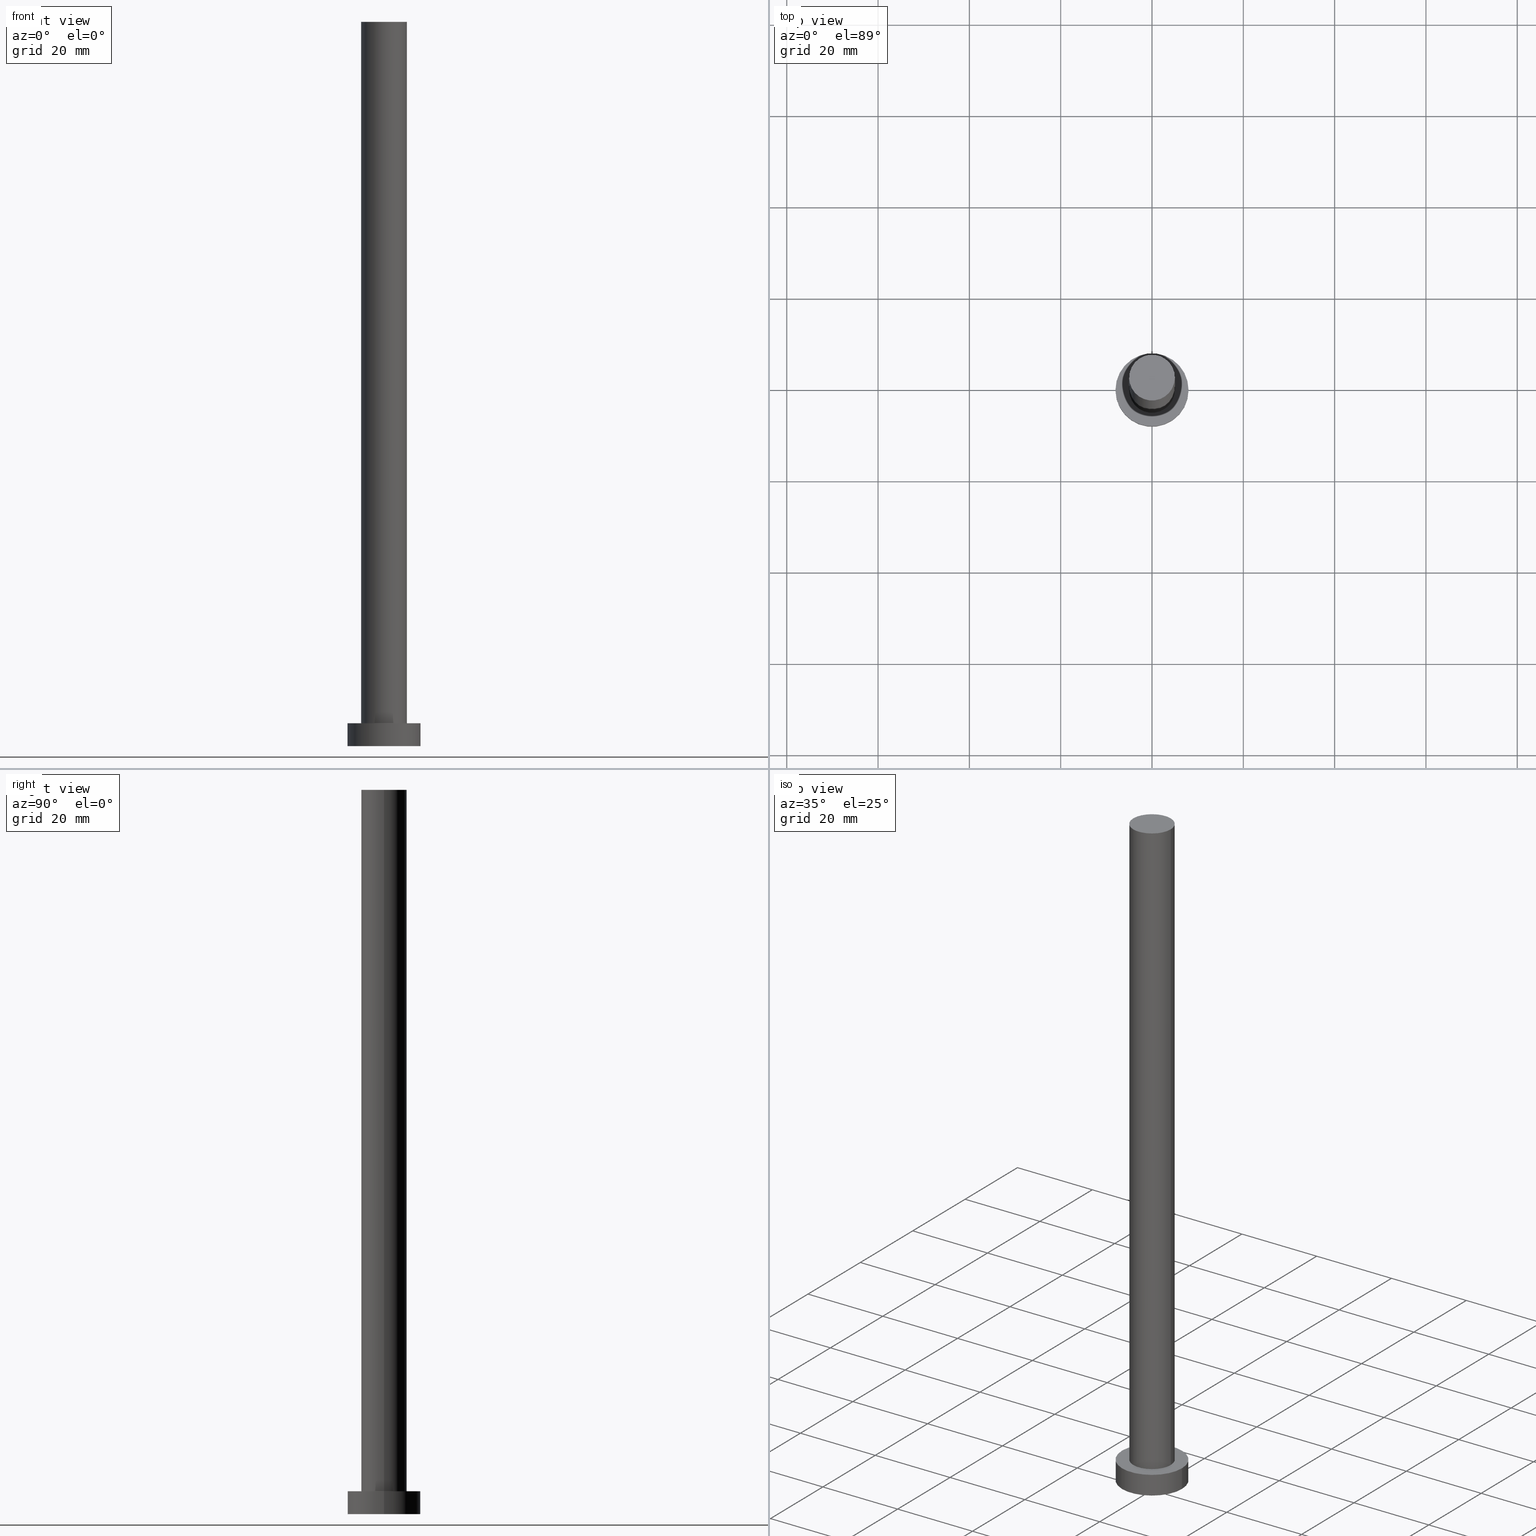
[diagram: canonical four-view strip — front | top / right | iso, engineering-drawing reading convention]
A machine part, canonical four-view strip (front | top / right | iso — engineering-drawing reading convention). The complete STEP part file that produces these views, byte-faithful:
ISO-10303-21;
HEADER;
FILE_DESCRIPTION (( 'STEP AP203' ),
    '1' );
FILE_NAME ('de95.STEP',
    '2023-09-06T11:55:26',
    ( '' ),
    ( '' ),
    'SwSTEP 2.0',
    'SolidWorks 2019',
    '' );
FILE_SCHEMA (( 'CONFIG_CONTROL_DESIGN' ));
ENDSEC;

DATA;
#1 = CALENDAR_DATE ( 2023, 6, 9 ) ;
#2 = CC_DESIGN_PERSON_AND_ORGANIZATION_ASSIGNMENT ( #46, #117, ( #139 ) ) ;
#3 = ORIENTED_EDGE ( 'NONE', *, *, #114, .T. ) ;
#4 = CIRCLE ( 'NONE', #44, 8.000000000000000000 ) ;
#5 = VERTEX_POINT ( 'NONE', #51 ) ;
#6 = EDGE_CURVE ( 'NONE', #91, #10, #74, .T. ) ;
#7 = ORIENTED_EDGE ( 'NONE', *, *, #57, .F. ) ;
#8 = VERTEX_POINT ( 'NONE', #154 ) ;
#9 = UNCERTAINTY_MEASURE_WITH_UNIT (LENGTH_MEASURE( 1.000000000000000082E-05 ), #138, 'distance_accuracy_value', 'NONE');
#10 = VERTEX_POINT ( 'NONE', #132 ) ;
#11 = CC_DESIGN_APPROVAL ( #175, ( #139 ) ) ;
#12 = DIRECTION ( 'NONE',  ( 1.000000000000000000, 0.000000000000000000, 0.000000000000000000 ) ) ;
#13 = CARTESIAN_POINT ( 'NONE',  ( 0.000000000000000000, 0.000000000000000000, 158.5999999999999943 ) ) ;
#14 = DIRECTION ( 'NONE',  ( 0.000000000000000000, 0.000000000000000000, 1.000000000000000000 ) ) ;
#15 = AXIS2_PLACEMENT_3D ( 'NONE', #13, #136, #212 ) ;
#16 =( NAMED_UNIT ( * ) PLANE_ANGLE_UNIT ( ) SI_UNIT ( $, .RADIAN. ) );
#17 = CARTESIAN_POINT ( 'NONE',  ( -5.000000000000000000, 0.000000000000000000, 158.5999999999999943 ) ) ;
#18 = DIRECTION ( 'NONE',  ( 1.000000000000000000, 0.000000000000000000, 0.000000000000000000 ) ) ;
#19 = CIRCLE ( 'NONE', #230, 5.000000000000000000 ) ;
#20 = LOCAL_TIME ( 13, 55, 26.00000000000000000, #184 ) ;
#21 = DATE_AND_TIME ( #87, #84 ) ;
#22 = DIRECTION ( 'NONE',  ( 0.000000000000000000, 0.000000000000000000, 1.000000000000000000 ) ) ;
#23 = COORDINATED_UNIVERSAL_TIME_OFFSET ( 1, 0, .AHEAD. ) ;
#24 = PRODUCT_DEFINITION ( 'NEZN�M�', '', #140, #205 ) ;
#25 = CALENDAR_DATE ( 2023, 6, 9 ) ;
#26 = ADVANCED_FACE ( 'NONE', ( #172 ), #93, .T. ) ;
#27 = LOCAL_TIME ( 13, 55, 26.00000000000000000, #23 ) ;
#28 = APPROVAL_PERSON_ORGANIZATION ( #221, #167, #43 ) ;
#29 = ORIENTED_EDGE ( 'NONE', *, *, #153, .F. ) ;
#30 = VERTEX_POINT ( 'NONE', #157 ) ;
#31 = CARTESIAN_POINT ( 'NONE',  ( 8.000000000000000000, 9.797174393178825657E-16, 5.000000000000000000 ) ) ;
#32 = ORIENTED_EDGE ( 'NONE', *, *, #85, .F. ) ;
#33 = AXIS2_PLACEMENT_3D ( 'NONE', #241, #75, #155 ) ;
#34 = CYLINDRICAL_SURFACE ( 'NONE', #110, 5.000000000000000000 ) ;
#35 = CIRCLE ( 'NONE', #252, 8.000000000000000000 ) ;
#36 = ADVANCED_BREP_SHAPE_REPRESENTATION ( 'de95', ( #71, #234 ), #101 ) ;
#37 = DIRECTION ( 'NONE',  ( -0.000000000000000000, -0.000000000000000000, -1.000000000000000000 ) ) ;
#38 = DIRECTION ( 'NONE',  ( 1.000000000000000000, 0.000000000000000000, -0.000000000000000000 ) ) ;
#39 = ADVANCED_FACE ( 'NONE', ( #244 ), #34, .T. ) ;
#40 =( NAMED_UNIT ( * ) SI_UNIT ( $, .STERADIAN. ) SOLID_ANGLE_UNIT ( ) );
#41 = DIRECTION ( 'NONE',  ( 1.000000000000000000, 0.000000000000000000, -0.000000000000000000 ) ) ;
#42 = CARTESIAN_POINT ( 'NONE',  ( 5.000000000000000000, 6.123233995736766282E-16, 158.5999999999999943 ) ) ;
#43 = APPROVAL_ROLE ( '' ) ;
#44 = AXIS2_PLACEMENT_3D ( 'NONE', #194, #14, #232 ) ;
#45 = APPROVAL_PERSON_ORGANIZATION ( #237, #175, #200 ) ;
#46 = PERSON_AND_ORGANIZATION ( #185, #231 ) ;
#47 = SECURITY_CLASSIFICATION_LEVEL ( 'unclassified' ) ;
#48 = APPLICATION_PROTOCOL_DEFINITION ( 'international standard', 'config_control_design', 1994, #239 ) ;
#49 = CC_DESIGN_SECURITY_CLASSIFICATION ( #139, ( #140 ) ) ;
#50 = ORIENTED_EDGE ( 'NONE', *, *, #6, .F. ) ;
#51 = CARTESIAN_POINT ( 'NONE',  ( -5.000000000000000000, 0.000000000000000000, 5.000000000000000000 ) ) ;
#52 = CARTESIAN_POINT ( 'NONE',  ( 5.000000000000000000, 6.123233995736766282E-16, 158.5999999999999943 ) ) ;
#53 = EDGE_LOOP ( 'NONE', ( #204, #203, #188, #104 ) ) ;
#54 = CC_DESIGN_PERSON_AND_ORGANIZATION_ASSIGNMENT ( #126, #253, ( #140 ) ) ;
#55 = VERTEX_POINT ( 'NONE', #52 ) ;
#56 = CARTESIAN_POINT ( 'NONE',  ( -8.000000000000000000, 0.000000000000000000, 0.000000000000000000 ) ) ;
#57 = EDGE_CURVE ( 'NONE', #170, #10, #133, .T. ) ;
#58 = CARTESIAN_POINT ( 'NONE',  ( 0.000000000000000000, 0.000000000000000000, 5.000000000000000000 ) ) ;
#59 = DIRECTION ( 'NONE',  ( -1.000000000000000000, 0.000000000000000000, 0.000000000000000000 ) ) ;
#60 = CARTESIAN_POINT ( 'NONE',  ( 0.000000000000000000, 0.000000000000000000, 0.000000000000000000 ) ) ;
#61 = CLOSED_SHELL ( 'NONE', ( #195, #26, #77, #168, #219, #39, #107 ) ) ;
#62 = CARTESIAN_POINT ( 'NONE',  ( -8.000000000000000000, 0.000000000000000000, 5.000000000000000000 ) ) ;
#63 = APPLICATION_PROTOCOL_DEFINITION ( 'international standard', 'config_control_design', 1994, #142 ) ;
#64 = ORIENTED_EDGE ( 'NONE', *, *, #178, .T. ) ;
#65 = PRODUCT ( 'de95', 'de95', '', ( #122 ) ) ;
#66 = DATE_TIME_ROLE ( 'classification_date' ) ;
#67 = DATE_TIME_ROLE ( 'creation_date' ) ;
#68 = CC_DESIGN_PERSON_AND_ORGANIZATION_ASSIGNMENT ( #255, #70, ( #65 ) ) ;
#69 = PERSON_AND_ORGANIZATION_ROLE ( 'design_supplier' ) ;
#70 = PERSON_AND_ORGANIZATION_ROLE ( 'design_owner' ) ;
#71 = MANIFOLD_SOLID_BREP ( 'P�idat vysunut�m3', #61 ) ;
#72 = LOCAL_TIME ( 13, 55, 26.00000000000000000, #236 ) ;
#73 = CARTESIAN_POINT ( 'NONE',  ( 0.000000000000000000, 0.000000000000000000, 5.000000000000000000 ) ) ;
#74 = LINE ( 'NONE', #242, #233 ) ;
#75 = DIRECTION ( 'NONE',  ( -0.000000000000000000, -0.000000000000000000, -1.000000000000000000 ) ) ;
#76 = CYLINDRICAL_SURFACE ( 'NONE', #33, 8.000000000000000000 ) ;
#77 = ADVANCED_FACE ( 'NONE', ( #94 ), #76, .T. ) ;
#78 = ORIENTED_EDGE ( 'NONE', *, *, #178, .F. ) ;
#79 = CIRCLE ( 'NONE', #225, 5.000000000000000000 ) ;
#80 = DIRECTION ( 'NONE',  ( -0.000000000000000000, -0.000000000000000000, -1.000000000000000000 ) ) ;
#81 = DIRECTION ( 'NONE',  ( 1.000000000000000000, 0.000000000000000000, 0.000000000000000000 ) ) ;
#82 = DIRECTION ( 'NONE',  ( 0.000000000000000000, 0.000000000000000000, 1.000000000000000000 ) ) ;
#83 = AXIS2_PLACEMENT_3D ( 'NONE', #174, #206, #245 ) ;
#84 = LOCAL_TIME ( 13, 55, 26.00000000000000000, #186 ) ;
#85 = EDGE_CURVE ( 'NONE', #5, #30, #19, .T. ) ;
#86 = AXIS2_PLACEMENT_3D ( 'NONE', #171, #193, #12 ) ;
#87 = CALENDAR_DATE ( 2023, 6, 9 ) ;
#88 = ORIENTED_EDGE ( 'NONE', *, *, #6, .T. ) ;
#89 = CIRCLE ( 'NONE', #15, 5.000000000000000000 ) ;
#90 = ORIENTED_EDGE ( 'NONE', *, *, #191, .F. ) ;
#91 = VERTEX_POINT ( 'NONE', #31 ) ;
#92 = DIRECTION ( 'NONE',  ( -0.000000000000000000, -0.000000000000000000, -1.000000000000000000 ) ) ;
#93 = CYLINDRICAL_SURFACE ( 'NONE', #83, 8.000000000000000000 ) ;
#94 = FACE_OUTER_BOUND ( 'NONE', #127, .T. ) ;
#95 = FACE_OUTER_BOUND ( 'NONE', #130, .T. ) ;
#96 = FACE_OUTER_BOUND ( 'NONE', #187, .T. ) ;
#97 = CIRCLE ( 'NONE', #247, 8.000000000000000000 ) ;
#98 = PLANE ( 'NONE',  #173 ) ;
#99 = APPROVAL_DATE_TIME ( #222, #167 ) ;
#100 = APPROVAL_DATE_TIME ( #238, #175 ) ;
#101 =( GEOMETRIC_REPRESENTATION_CONTEXT ( 3 ) GLOBAL_UNCERTAINTY_ASSIGNED_CONTEXT ( ( #9 ) ) GLOBAL_UNIT_ASSIGNED_CONTEXT ( ( #138, #16, #40 ) ) REPRESENTATION_CONTEXT ( 'NONE', 'WORKASPACE' ) );
#102 = DIRECTION ( 'NONE',  ( 1.000000000000000000, 0.000000000000000000, 0.000000000000000000 ) ) ;
#103 = CC_DESIGN_PERSON_AND_ORGANIZATION_ASSIGNMENT ( #143, #181, ( #24 ) ) ;
#104 = ORIENTED_EDGE ( 'NONE', *, *, #158, .F. ) ;
#105 = AXIS2_PLACEMENT_3D ( 'NONE', #159, #213, #134 ) ;
#106 = ORIENTED_EDGE ( 'NONE', *, *, #114, .F. ) ;
#107 = ADVANCED_FACE ( 'NONE', ( #128 ), #190, .T. ) ;
#108 = ORIENTED_EDGE ( 'NONE', *, *, #115, .F. ) ;
#109 = EDGE_LOOP ( 'NONE', ( #90, #88, #3, #210 ) ) ;
#110 = AXIS2_PLACEMENT_3D ( 'NONE', #243, #224, #111 ) ;
#111 = DIRECTION ( 'NONE',  ( -1.000000000000000000, 0.000000000000000000, 0.000000000000000000 ) ) ;
#112 = LINE ( 'NONE', #17, #125 ) ;
#113 = AXIS2_PLACEMENT_3D ( 'NONE', #196, #82, #41 ) ;
#114 = EDGE_CURVE ( 'NONE', #10, #170, #4, .T. ) ;
#115 = EDGE_CURVE ( 'NONE', #30, #5, #79, .T. ) ;
#116 = DIRECTION ( 'NONE',  ( 0.000000000000000000, 0.000000000000000000, 1.000000000000000000 ) ) ;
#117 = PERSON_AND_ORGANIZATION_ROLE ( 'classification_officer' ) ;
#118 = AXIS2_PLACEMENT_3D ( 'NONE', #156, #214, #38 ) ;
#119 = VECTOR ( 'NONE', #80, 1000.000000000000000 ) ;
#120 = PRODUCT_DEFINITION_SHAPE ( 'NONE', 'NONE',  #24 ) ;
#121 = APPROVAL_STATUS ( 'not_yet_approved' ) ;
#122 = MECHANICAL_CONTEXT ( 'NONE', #142, 'mechanical' ) ;
#123 = APPROVAL_STATUS ( 'not_yet_approved' ) ;
#124 = PRODUCT_RELATED_PRODUCT_CATEGORY ( 'detail', '', ( #65 ) ) ;
#125 = VECTOR ( 'NONE', #229, 1000.000000000000000 ) ;
#126 = PERSON_AND_ORGANIZATION ( #185, #231 ) ;
#127 = EDGE_LOOP ( 'NONE', ( #50, #78, #226, #144 ) ) ;
#128 = FACE_OUTER_BOUND ( 'NONE', #216, .T. ) ;
#129 = APPROVAL ( #123, 'NEUR�EN�' ) ;
#130 = EDGE_LOOP ( 'NONE', ( #7, #106 ) ) ;
#131 = EDGE_LOOP ( 'NONE', ( #29, #223, #189, #228 ) ) ;
#132 = CARTESIAN_POINT ( 'NONE',  ( 8.000000000000000000, 9.797174393178825657E-16, 0.000000000000000000 ) ) ;
#133 = CIRCLE ( 'NONE', #86, 8.000000000000000000 ) ;
#134 = DIRECTION ( 'NONE',  ( 1.000000000000000000, 0.000000000000000000, 0.000000000000000000 ) ) ;
#135 = AXIS2_PLACEMENT_3D ( 'NONE', #235, #37, #59 ) ;
#136 = DIRECTION ( 'NONE',  ( 0.000000000000000000, 0.000000000000000000, 1.000000000000000000 ) ) ;
#137 = CC_DESIGN_DATE_AND_TIME_ASSIGNMENT ( #254, #66, ( #139 ) ) ;
#138 =( LENGTH_UNIT ( ) NAMED_UNIT ( * ) SI_UNIT ( .MILLI., .METRE. ) );
#139 = SECURITY_CLASSIFICATION ( '', '', #47 ) ;
#140 = PRODUCT_DEFINITION_FORMATION_WITH_SPECIFIED_SOURCE ( 'LIBOVOLN�', '', #65, .NOT_KNOWN. ) ;
#141 = DIRECTION ( 'NONE',  ( 0.000000000000000000, 0.000000000000000000, 1.000000000000000000 ) ) ;
#142 = APPLICATION_CONTEXT ( 'configuration controlled 3d designs of mechanical parts and assemblies' ) ;
#143 = PERSON_AND_ORGANIZATION ( #185, #231 ) ;
#144 = ORIENTED_EDGE ( 'NONE', *, *, #57, .T. ) ;
#145 = CALENDAR_DATE ( 2023, 6, 9 ) ;
#146 = VECTOR ( 'NONE', #197, 1000.000000000000000 ) ;
#147 = APPROVAL_ROLE ( '' ) ;
#148 = CC_DESIGN_PERSON_AND_ORGANIZATION_ASSIGNMENT ( #201, #69, ( #140 ) ) ;
#149 = EDGE_CURVE ( 'NONE', #55, #169, #217, .T. ) ;
#150 = APPROVAL_STATUS ( 'not_yet_approved' ) ;
#151 = CC_DESIGN_APPROVAL ( #129, ( #24 ) ) ;
#152 = DIRECTION ( 'NONE',  ( 0.000000000000000000, 0.000000000000000000, 1.000000000000000000 ) ) ;
#153 = EDGE_CURVE ( 'NONE', #55, #30, #215, .T. ) ;
#154 = CARTESIAN_POINT ( 'NONE',  ( -8.000000000000000000, 0.000000000000000000, 5.000000000000000000 ) ) ;
#155 = DIRECTION ( 'NONE',  ( -1.000000000000000000, 0.000000000000000000, 0.000000000000000000 ) ) ;
#156 = CARTESIAN_POINT ( 'NONE',  ( 0.000000000000000000, 0.000000000000000000, 158.5999999999999943 ) ) ;
#157 = CARTESIAN_POINT ( 'NONE',  ( 5.000000000000000000, 6.123233995736766282E-16, 5.000000000000000000 ) ) ;
#158 = EDGE_CURVE ( 'NONE', #169, #5, #112, .T. ) ;
#159 = CARTESIAN_POINT ( 'NONE',  ( 0.000000000000000000, 0.000000000000000000, 158.5999999999999943 ) ) ;
#160 = EDGE_CURVE ( 'NONE', #169, #55, #89, .T. ) ;
#161 = FACE_OUTER_BOUND ( 'NONE', #53, .T. ) ;
#162 = LINE ( 'NONE', #62, #119 ) ;
#163 = CARTESIAN_POINT ( 'NONE',  ( -5.000000000000000000, 0.000000000000000000, 158.5999999999999943 ) ) ;
#164 = DATE_AND_TIME ( #165, #240 ) ;
#165 = CALENDAR_DATE ( 2023, 6, 9 ) ;
#166 = APPROVAL_PERSON_ORGANIZATION ( #199, #129, #147 ) ;
#167 = APPROVAL ( #150, 'NEUR�EN�' ) ;
#168 = ADVANCED_FACE ( 'NONE', ( #198, #96 ), #180, .T. ) ;
#169 = VERTEX_POINT ( 'NONE', #163 ) ;
#170 = VERTEX_POINT ( 'NONE', #56 ) ;
#171 = CARTESIAN_POINT ( 'NONE',  ( 0.000000000000000000, 0.000000000000000000, 0.000000000000000000 ) ) ;
#172 = FACE_OUTER_BOUND ( 'NONE', #109, .T. ) ;
#173 = AXIS2_PLACEMENT_3D ( 'NONE', #60, #246, #176 ) ;
#174 = CARTESIAN_POINT ( 'NONE',  ( 0.000000000000000000, 0.000000000000000000, 5.000000000000000000 ) ) ;
#175 = APPROVAL ( #121, 'NEUR�EN�' ) ;
#176 = DIRECTION ( 'NONE',  ( 1.000000000000000000, 0.000000000000000000, -0.000000000000000000 ) ) ;
#177 = DIRECTION ( 'NONE',  ( 0.000000000000000000, 0.000000000000000000, 1.000000000000000000 ) ) ;
#178 = EDGE_CURVE ( 'NONE', #8, #91, #35, .T. ) ;
#179 = CARTESIAN_POINT ( 'NONE',  ( 0.000000000000000000, 0.000000000000000000, 5.000000000000000000 ) ) ;
#180 = PLANE ( 'NONE',  #113 ) ;
#181 = PERSON_AND_ORGANIZATION_ROLE ( 'creator' ) ;
#182 = APPROVAL_DATE_TIME ( #164, #129 ) ;
#183 = SHAPE_DEFINITION_REPRESENTATION ( #120, #36 ) ;
#184 = COORDINATED_UNIVERSAL_TIME_OFFSET ( 1, 0, .AHEAD. ) ;
#185 = PERSON ( 'NEUR�EN�', 'NEUR�EN�', 'NEUR�EN�', ('NEUR�EN�'), ('NEUR�EN�'), ('NEUR�EN�') ) ;
#186 = COORDINATED_UNIVERSAL_TIME_OFFSET ( 1, 0, .AHEAD. ) ;
#187 = EDGE_LOOP ( 'NONE', ( #64, #192 ) ) ;
#188 = ORIENTED_EDGE ( 'NONE', *, *, #115, .T. ) ;
#189 = ORIENTED_EDGE ( 'NONE', *, *, #158, .T. ) ;
#190 = PLANE ( 'NONE',  #118 ) ;
#191 = EDGE_CURVE ( 'NONE', #91, #8, #97, .T. ) ;
#192 = ORIENTED_EDGE ( 'NONE', *, *, #191, .T. ) ;
#193 = DIRECTION ( 'NONE',  ( 0.000000000000000000, 0.000000000000000000, 1.000000000000000000 ) ) ;
#194 = CARTESIAN_POINT ( 'NONE',  ( 0.000000000000000000, 0.000000000000000000, 0.000000000000000000 ) ) ;
#195 = ADVANCED_FACE ( 'NONE', ( #161 ), #250, .T. ) ;
#196 = CARTESIAN_POINT ( 'NONE',  ( 0.000000000000000000, 0.000000000000000000, 5.000000000000000000 ) ) ;
#197 = DIRECTION ( 'NONE',  ( -0.000000000000000000, -0.000000000000000000, -1.000000000000000000 ) ) ;
#198 = FACE_BOUND ( 'NONE', #227, .T. ) ;
#199 = PERSON_AND_ORGANIZATION ( #185, #231 ) ;
#200 = APPROVAL_ROLE ( '' ) ;
#201 = PERSON_AND_ORGANIZATION ( #185, #231 ) ;
#202 = COORDINATED_UNIVERSAL_TIME_OFFSET ( 1, 0, .AHEAD. ) ;
#203 = ORIENTED_EDGE ( 'NONE', *, *, #153, .T. ) ;
#204 = ORIENTED_EDGE ( 'NONE', *, *, #149, .F. ) ;
#205 = DESIGN_CONTEXT ( 'detailed design', #239, 'design' ) ;
#206 = DIRECTION ( 'NONE',  ( -0.000000000000000000, -0.000000000000000000, -1.000000000000000000 ) ) ;
#207 = DIRECTION ( 'NONE',  ( 1.000000000000000000, 0.000000000000000000, 0.000000000000000000 ) ) ;
#208 = CC_DESIGN_DATE_AND_TIME_ASSIGNMENT ( #21, #67, ( #24 ) ) ;
#209 = ORIENTED_EDGE ( 'NONE', *, *, #149, .T. ) ;
#210 = ORIENTED_EDGE ( 'NONE', *, *, #249, .F. ) ;
#211 = CC_DESIGN_APPROVAL ( #167, ( #140 ) ) ;
#212 = DIRECTION ( 'NONE',  ( 1.000000000000000000, 0.000000000000000000, 0.000000000000000000 ) ) ;
#213 = DIRECTION ( 'NONE',  ( 0.000000000000000000, 0.000000000000000000, 1.000000000000000000 ) ) ;
#214 = DIRECTION ( 'NONE',  ( 0.000000000000000000, 0.000000000000000000, 1.000000000000000000 ) ) ;
#215 = LINE ( 'NONE', #42, #146 ) ;
#216 = EDGE_LOOP ( 'NONE', ( #220, #209 ) ) ;
#217 = CIRCLE ( 'NONE', #105, 5.000000000000000000 ) ;
#218 = CARTESIAN_POINT ( 'NONE',  ( 0.000000000000000000, 0.000000000000000000, 0.000000000000000000 ) ) ;
#219 = ADVANCED_FACE ( 'NONE', ( #95 ), #98, .F. ) ;
#220 = ORIENTED_EDGE ( 'NONE', *, *, #160, .T. ) ;
#221 = PERSON_AND_ORGANIZATION ( #185, #231 ) ;
#222 = DATE_AND_TIME ( #145, #72 ) ;
#223 = ORIENTED_EDGE ( 'NONE', *, *, #160, .F. ) ;
#224 = DIRECTION ( 'NONE',  ( -0.000000000000000000, -0.000000000000000000, -1.000000000000000000 ) ) ;
#225 = AXIS2_PLACEMENT_3D ( 'NONE', #58, #177, #251 ) ;
#226 = ORIENTED_EDGE ( 'NONE', *, *, #249, .T. ) ;
#227 = EDGE_LOOP ( 'NONE', ( #32, #108 ) ) ;
#228 = ORIENTED_EDGE ( 'NONE', *, *, #85, .T. ) ;
#229 = DIRECTION ( 'NONE',  ( -0.000000000000000000, -0.000000000000000000, -1.000000000000000000 ) ) ;
#230 = AXIS2_PLACEMENT_3D ( 'NONE', #73, #152, #207 ) ;
#231 = ORGANIZATION ( 'NEUR�EN�', 'NEUR�EN�', '' ) ;
#232 = DIRECTION ( 'NONE',  ( 1.000000000000000000, 0.000000000000000000, 0.000000000000000000 ) ) ;
#233 = VECTOR ( 'NONE', #92, 1000.000000000000000 ) ;
#234 = AXIS2_PLACEMENT_3D ( 'NONE', #218, #22, #102 ) ;
#235 = CARTESIAN_POINT ( 'NONE',  ( 0.000000000000000000, 0.000000000000000000, 158.5999999999999943 ) ) ;
#236 = COORDINATED_UNIVERSAL_TIME_OFFSET ( 1, 0, .AHEAD. ) ;
#237 = PERSON_AND_ORGANIZATION ( #185, #231 ) ;
#238 = DATE_AND_TIME ( #1, #20 ) ;
#239 = APPLICATION_CONTEXT ( 'configuration controlled 3d designs of mechanical parts and assemblies' ) ;
#240 = LOCAL_TIME ( 13, 55, 26.00000000000000000, #202 ) ;
#241 = CARTESIAN_POINT ( 'NONE',  ( 0.000000000000000000, 0.000000000000000000, 5.000000000000000000 ) ) ;
#242 = CARTESIAN_POINT ( 'NONE',  ( 8.000000000000000000, 9.797174393178825657E-16, 5.000000000000000000 ) ) ;
#243 = CARTESIAN_POINT ( 'NONE',  ( 0.000000000000000000, 0.000000000000000000, 158.5999999999999943 ) ) ;
#244 = FACE_OUTER_BOUND ( 'NONE', #131, .T. ) ;
#245 = DIRECTION ( 'NONE',  ( -1.000000000000000000, 0.000000000000000000, 0.000000000000000000 ) ) ;
#246 = DIRECTION ( 'NONE',  ( 0.000000000000000000, 0.000000000000000000, 1.000000000000000000 ) ) ;
#247 = AXIS2_PLACEMENT_3D ( 'NONE', #248, #116, #18 ) ;
#248 = CARTESIAN_POINT ( 'NONE',  ( 0.000000000000000000, 0.000000000000000000, 5.000000000000000000 ) ) ;
#249 = EDGE_CURVE ( 'NONE', #8, #170, #162, .T. ) ;
#250 = CYLINDRICAL_SURFACE ( 'NONE', #135, 5.000000000000000000 ) ;
#251 = DIRECTION ( 'NONE',  ( 1.000000000000000000, 0.000000000000000000, 0.000000000000000000 ) ) ;
#252 = AXIS2_PLACEMENT_3D ( 'NONE', #179, #141, #81 ) ;
#253 = PERSON_AND_ORGANIZATION_ROLE ( 'creator' ) ;
#254 = DATE_AND_TIME ( #25, #27 ) ;
#255 = PERSON_AND_ORGANIZATION ( #185, #231 ) ;
ENDSEC;
END-ISO-10303-21;
